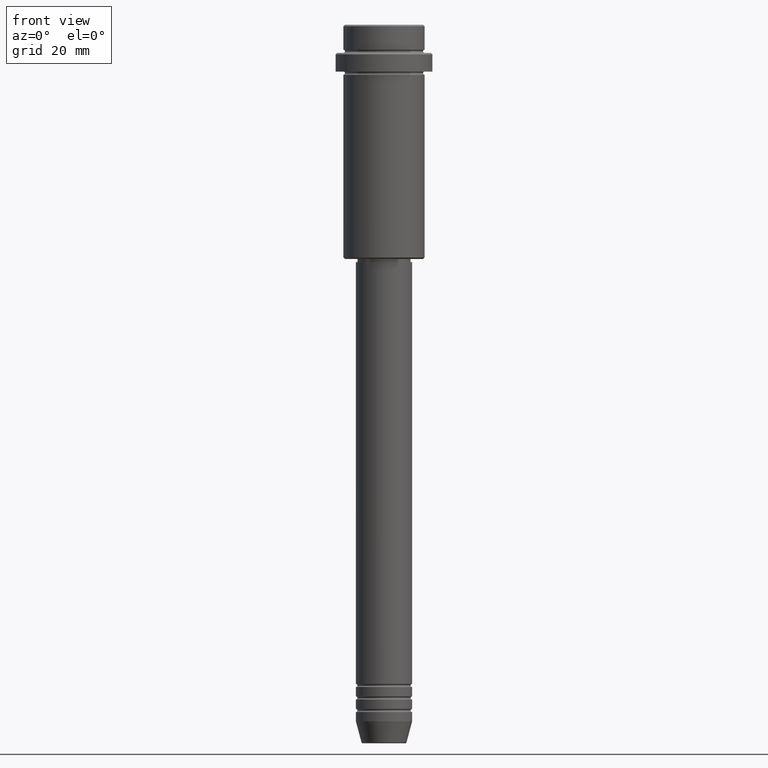
[diagram: clean part render]
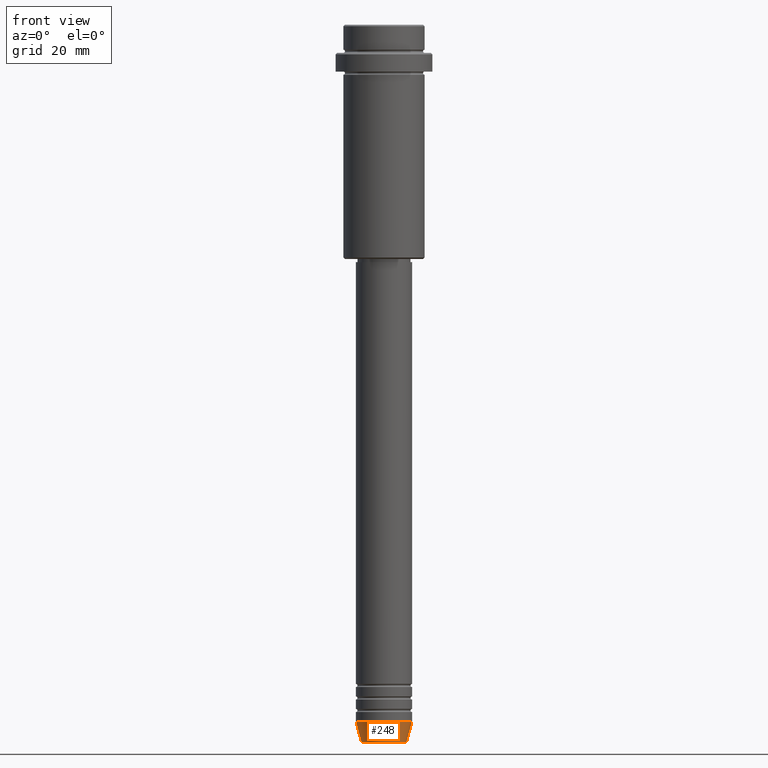
[diagram: same view with one face highlighted and labeled with its STEP entity id]
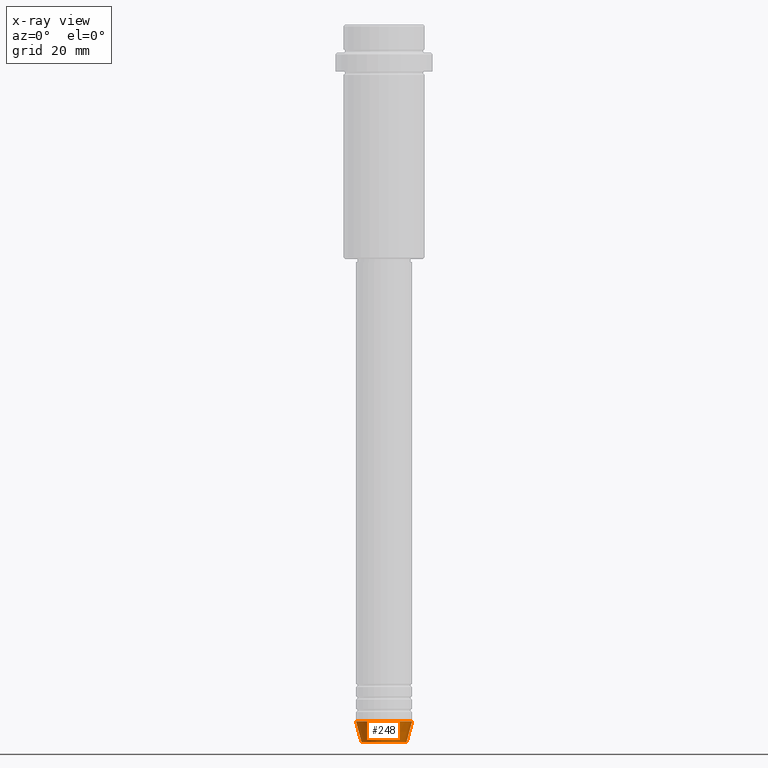
[diagram: x-ray of the same camera — body ghosted, the highlighted face saturated]
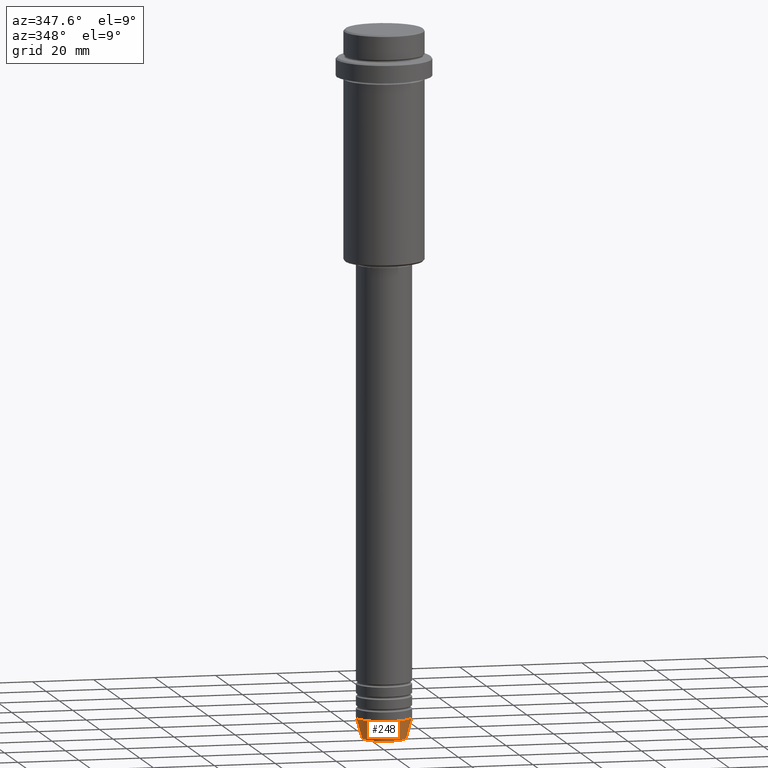
[diagram: same view with one face highlighted and labeled with its STEP entity id]
A machine part, front view. The second image highlights one B-rep face of the part: STEP entity #248.
The next image is the same camera in x-ray: the body ghosted, the highlighted face saturated — about 0% of this face is hidden behind the body in this view.
A second angle (auxiliary view) of the same face is appended — the face is thin or edge-on in the first view.
In plain terms, the highlighted conical surface has half-angle 15 deg.
Its self-contained STEP definition (entity closure, byte-faithful):
#59 = VECTOR ( 'NONE', #685, 1000.000000000000114 ) ;
#66 = EDGE_CURVE ( 'NONE', #229, #1069, #1036, .T. ) ;
#181 = CARTESIAN_POINT ( 'NONE',  ( 7.223655072137194821, 0.000000000000000000, -229.6294095225512990 ) ) ;
#184 = CARTESIAN_POINT ( 'NONE',  ( -9.000000000000000000, 1.102182119232617714E-15, -223.0000000000000284 ) ) ;
#229 = VERTEX_POINT ( 'NONE', #1366 ) ;
#248 = ADVANCED_FACE ( 'NONE', ( #723 ), #781, .T. ) ;
#361 = CIRCLE ( 'NONE', #411, 9.000000000000000000 ) ;
#411 = AXIS2_PLACEMENT_3D ( 'NONE', #944, #497, #602 ) ;
#497 = DIRECTION ( 'NONE',  ( -0.000000000000000000, -0.000000000000000000, 1.000000000000000000 ) ) ;
#501 = DIRECTION ( 'NONE',  ( -0.000000000000000000, -0.000000000000000000, 1.000000000000000000 ) ) ;
#555 = DIRECTION ( 'NONE',  ( -0.000000000000000000, -0.000000000000000000, 1.000000000000000000 ) ) ;
#568 = ORIENTED_EDGE ( 'NONE', *, *, #675, .F. ) ;
#601 = VERTEX_POINT ( 'NONE', #1145 ) ;
#602 = DIRECTION ( 'NONE',  ( 1.000000000000000000, 0.000000000000000000, 0.000000000000000000 ) ) ;
#675 = EDGE_CURVE ( 'NONE', #229, #601, #942, .T. ) ;
#685 = DIRECTION ( 'NONE',  ( 0.2588190451025205174, 0.000000000000000000, 0.9659258262890684232 ) ) ;
#709 = CARTESIAN_POINT ( 'NONE',  ( 0.000000000000000000, 0.000000000000000000, -223.0000000000000284 ) ) ;
#723 = FACE_OUTER_BOUND ( 'NONE', #1236, .T. ) ;
#781 = CONICAL_SURFACE ( 'NONE', #1357, 9.000000000000000000, 0.2617993877991491303 ) ;
#825 = CARTESIAN_POINT ( 'NONE',  ( 9.000000000000000000, 0.000000000000000000, -223.0000000000000284 ) ) ;
#832 = VECTOR ( 'NONE', #1380, 1000.000000000000114 ) ;
#864 = ORIENTED_EDGE ( 'NONE', *, *, #1085, .F. ) ;
#875 = AXIS2_PLACEMENT_3D ( 'NONE', #1330, #555, #885 ) ;
#883 = ORIENTED_EDGE ( 'NONE', *, *, #66, .T. ) ;
#885 = DIRECTION ( 'NONE',  ( 1.000000000000000000, 0.000000000000000000, 0.000000000000000000 ) ) ;
#916 = EDGE_CURVE ( 'NONE', #1069, #1143, #1021, .T. ) ;
#936 = DIRECTION ( 'NONE',  ( 1.000000000000000000, 0.000000000000000000, 0.000000000000000000 ) ) ;
#942 = LINE ( 'NONE', #184, #832 ) ;
#944 = CARTESIAN_POINT ( 'NONE',  ( 0.000000000000000000, 0.000000000000000000, -223.0000000000000284 ) ) ;
#1021 = LINE ( 'NONE', #1345, #59 ) ;
#1023 = ORIENTED_EDGE ( 'NONE', *, *, #916, .T. ) ;
#1036 = CIRCLE ( 'NONE', #875, 7.223655072137194821 ) ;
#1069 = VERTEX_POINT ( 'NONE', #181 ) ;
#1085 = EDGE_CURVE ( 'NONE', #601, #1143, #361, .T. ) ;
#1143 = VERTEX_POINT ( 'NONE', #825 ) ;
#1145 = CARTESIAN_POINT ( 'NONE',  ( -9.000000000000000000, 1.102182119232617714E-15, -223.0000000000000284 ) ) ;
#1236 = EDGE_LOOP ( 'NONE', ( #568, #883, #1023, #864 ) ) ;
#1330 = CARTESIAN_POINT ( 'NONE',  ( 0.000000000000000000, 0.000000000000000000, -229.6294095225512990 ) ) ;
#1345 = CARTESIAN_POINT ( 'NONE',  ( 9.000000000000000000, 0.000000000000000000, -223.0000000000000284 ) ) ;
#1357 = AXIS2_PLACEMENT_3D ( 'NONE', #709, #501, #936 ) ;
#1366 = CARTESIAN_POINT ( 'NONE',  ( -7.223655072137194821, 9.934123627281767082E-16, -229.6294095225512990 ) ) ;
#1380 = DIRECTION ( 'NONE',  ( -0.2588190451025205174, 3.169619151431761243E-17, 0.9659258262890684232 ) ) ;